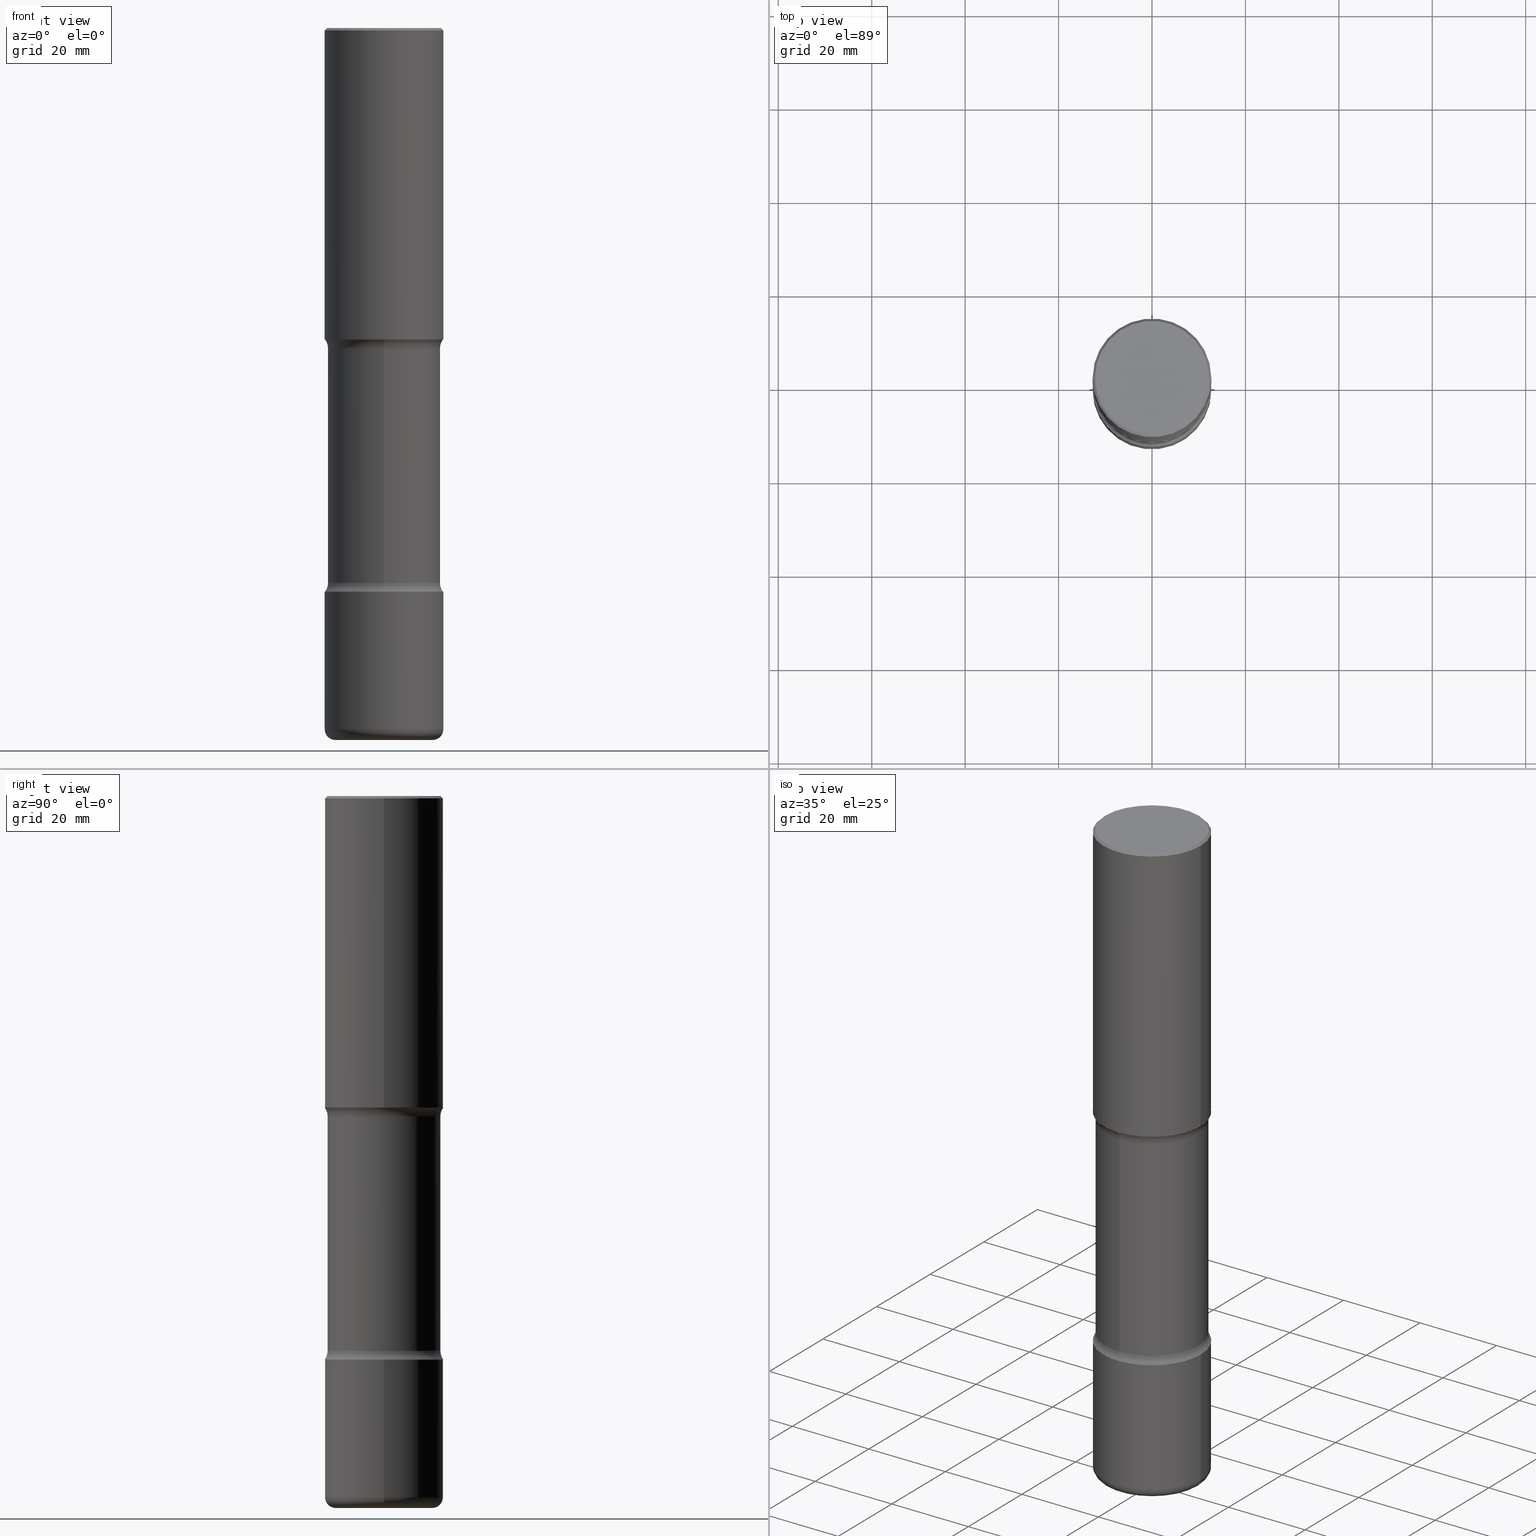
[diagram: canonical four-view strip — front | top / right | iso, engineering-drawing reading convention]
A machine part, canonical four-view strip (front | top / right | iso — engineering-drawing reading convention). The complete STEP part file that produces these views, byte-faithful:
ISO-10303-21;
HEADER;
FILE_DESCRIPTION (( 'STEP AP203' ),
    '1' );
FILE_NAME ('35140.STEP',
    '2024-03-01T23:17:48',
    ( '' ),
    ( '' ),
    'SwSTEP 2.0',
    'SolidWorks 2023',
    '' );
FILE_SCHEMA (( 'CONFIG_CONTROL_DESIGN' ));
ENDSEC;

DATA;
#1 = ORIENTED_EDGE ( 'NONE', *, *, #66, .T. ) ;
#2 = DIRECTION ( 'NONE',  ( 1.000000000000000000, -6.982962677686261977E-15, 0.000000000000000000 ) ) ;
#3 = ADVANCED_FACE ( 'NONE', ( #78 ), #238, .F. ) ;
#4 = CARTESIAN_POINT ( 'NONE',  ( 4.890937612370298557E-31, -6.982962677686327354E-17, -0.02000000000000010103 ) ) ;
#5 = VERTEX_POINT ( 'NONE', #531 ) ;
#6 = DIRECTION ( 'NONE',  ( -2.445468806185136597E-29, 3.491481338843145583E-15, 1.000000000000000000 ) ) ;
#7 = EDGE_CURVE ( 'NONE', #113, #234, #418, .T. ) ;
#8 = DIRECTION ( 'NONE',  ( 1.000000000000000000, -6.982962677686261977E-15, 0.000000000000000000 ) ) ;
#9 = ORIENTED_EDGE ( 'NONE', *, *, #491, .F. ) ;
#10 = DIRECTION ( 'NONE',  ( 1.000000000000000000, -6.982962677686267499E-15, 0.000000000000000000 ) ) ;
#11 = VECTOR ( 'NONE', #216, 39.37007874015748143 ) ;
#12 = FACE_OUTER_BOUND ( 'NONE', #178, .T. ) ;
#13 = SECURITY_CLASSIFICATION ( '', '', #221 ) ;
#14 = PLANE ( 'NONE',  #54 ) ;
#15 = ORIENTED_EDGE ( 'NONE', *, *, #521, .F. ) ;
#16 = DIRECTION ( 'NONE',  ( 6.982962677686265133E-15, 1.000000000000000000, -3.379601449890201672E-15 ) ) ;
#17 = DIRECTION ( 'NONE',  ( -2.445468806185136597E-29, 3.491481338843145583E-15, 1.000000000000000000 ) ) ;
#18 = CIRCLE ( 'NONE', #86, 0.5000000000000005551 ) ;
#19 = MECHANICAL_CONTEXT ( 'NONE', #414, 'mechanical' ) ;
#20 = ORIENTED_EDGE ( 'NONE', *, *, #386, .F. ) ;
#21 = EDGE_CURVE ( 'NONE', #320, #239, #315, .T. ) ;
#22 = CALENDAR_DATE ( 2024, 1, 3 ) ;
#23 = EDGE_CURVE ( 'NONE', #392, #320, #25, .T. ) ;
#24 = VECTOR ( 'NONE', #155, 39.37007874015748143 ) ;
#25 = LINE ( 'NONE', #501, #453 ) ;
#26 = TOROIDAL_SURFACE ( 'NONE', #402, 0.5999999999999999778, 0.1249999999999999584 ) ;
#27 = DIRECTION ( 'NONE',  ( 2.445468806185136597E-29, -3.491481338843145583E-15, -1.000000000000000000 ) ) ;
#28 = APPROVAL ( #454, 'UNSPECIFIED' ) ;
#29 = DIRECTION ( 'NONE',  ( 1.000000000000000000, -6.982962677686266711E-15, 4.876176775795935232E-29 ) ) ;
#30 = ORIENTED_EDGE ( 'NONE', *, *, #362, .F. ) ;
#31 = DIRECTION ( 'NONE',  ( 1.000000000000000000, -6.982962677686269077E-15, 4.883557194083113462E-29 ) ) ;
#32 = AXIS2_PLACEMENT_3D ( 'NONE', #268, #138, #312 ) ;
#33 = CARTESIAN_POINT ( 'NONE',  ( 1.445272064455415343E-28, -2.063465471256298629E-14, -5.909999999999999254 ) ) ;
#34 = DESIGN_CONTEXT ( 'detailed design', #71, 'design' ) ;
#35 = ORIENTED_EDGE ( 'NONE', *, *, #184, .T. ) ;
#36 = DIRECTION ( 'NONE',  ( 1.000000000000000000, -6.982962677686264344E-15, 0.000000000000000000 ) ) ;
#37 = FACE_OUTER_BOUND ( 'NONE', #248, .T. ) ;
#38 = PERSON_AND_ORGANIZATION_ROLE ( 'creator' ) ;
#39 = CARTESIAN_POINT ( 'NONE',  ( -3.131554243005659264E-46, 4.471029511141341874E-32, 1.280553747030123384E-17 ) ) ;
#40 = AXIS2_PLACEMENT_3D ( 'NONE', #352, #391, #202 ) ;
#41 = VERTEX_POINT ( 'NONE', #72 ) ;
#42 = EDGE_CURVE ( 'NONE', #82, #113, #189, .T. ) ;
#43 = DIRECTION ( 'NONE',  ( 6.982962677686265133E-15, 1.000000000000000000, -3.450755360418016739E-15 ) ) ;
#44 = DIRECTION ( 'NONE',  ( -1.000000000000000000, 6.982962677686266711E-15, 0.000000000000000000 ) ) ;
#45 = ORIENTED_EDGE ( 'NONE', *, *, #505, .F. ) ;
#46 = CARTESIAN_POINT ( 'NONE',  ( 4.102919532620488144E-30, -1.777045969450568052E-14, -2.625000000000000444 ) ) ;
#47 = CARTESIAN_POINT ( 'NONE',  ( 1.477046947322857785E-28, -2.080903817186768789E-14, -5.999999999999999112 ) ) ;
#48 = EDGE_CURVE ( 'NONE', #377, #5, #274, .T. ) ;
#49 = CALENDAR_DATE ( 2024, 1, 3 ) ;
#50 = DIRECTION ( 'NONE',  ( 2.438088387897960049E-29, -3.491481338843145188E-15, -1.000000000000000000 ) ) ;
#51 = VERTEX_POINT ( 'NONE', #74 ) ;
#52 = DIRECTION ( 'NONE',  ( 2.523594115079346016E-29, -3.379601449890201278E-15, -1.000000000000000000 ) ) ;
#53 = CARTESIAN_POINT ( 'NONE',  ( -0.5000000000000002220, 3.552713678800502507E-15, -2.459467545127454012E-29 ) ) ;
#54 = AXIS2_PLACEMENT_3D ( 'NONE', #210, #50, #343 ) ;
#55 = ORIENTED_EDGE ( 'NONE', *, *, #422, .T. ) ;
#56 = AXIS2_PLACEMENT_3D ( 'NONE', #508, #307, #57 ) ;
#57 = DIRECTION ( 'NONE',  ( 6.982962677686266711E-15, 1.000000000000000000, -3.278217592397114284E-15 ) ) ;
#58 = PERSON_AND_ORGANIZATION_ROLE ( 'design_supplier' ) ;
#59 = DIRECTION ( 'NONE',  ( 6.860497997771532351E-15, 1.000000000000000000, 0.000000000000000000 ) ) ;
#60 = ADVANCED_FACE ( 'NONE', ( #494 ), #498, .T. ) ;
#61 = CC_DESIGN_PERSON_AND_ORGANIZATION_ASSIGNMENT ( #84, #58, ( #104 ) ) ;
#62 = PERSON_AND_ORGANIZATION_ROLE ( 'design_owner' ) ;
#63 = PERSON_AND_ORGANIZATION ( #529, #183 ) ;
#64 = EDGE_CURVE ( 'NONE', #392, #207, #144, .T. ) ;
#65 = AXIS2_PLACEMENT_3D ( 'NONE', #390, #351, #2 ) ;
#66 = EDGE_CURVE ( 'NONE', #433, #51, #193, .T. ) ;
#67 = APPROVAL_STATUS ( 'not_yet_approved' ) ;
#68 = DIRECTION ( 'NONE',  ( 7.105427357601001859E-15, 1.000000000000000000, -3.491481338843145583E-15 ) ) ;
#69 = AXIS2_PLACEMENT_3D ( 'NONE', #120, #470, #83 ) ;
#70 = CARTESIAN_POINT ( 'NONE',  ( 0.4100000000000005307, -2.381190273091023638E-14, -5.999999999999998224 ) ) ;
#71 = APPLICATION_CONTEXT ( 'configuration controlled 3d designs of mechanical parts and assemblies' ) ;
#72 = CARTESIAN_POINT ( 'NONE',  ( 0.5000000000000002220, -2.007601769834807990E-14, -4.750000000000000888 ) ) ;
#73 = ORIENTED_EDGE ( 'NONE', *, *, #505, .T. ) ;
#74 = CARTESIAN_POINT ( 'NONE',  ( 0.5000000000000004441, -1.265661985330638997E-14, -2.624999999999999556 ) ) ;
#75 = VERTEX_POINT ( 'NONE', #280 ) ;
#76 = CLOSED_SHELL ( 'NONE', ( #500, #318, #88, #3, #231, #441 ) ) ;
#77 = TOROIDAL_SURFACE ( 'NONE', #365, 0.5999999999999998668, 0.1250000000000000278 ) ;
#78 = FACE_OUTER_BOUND ( 'NONE', #344, .T. ) ;
#79 = ORIENTED_EDGE ( 'NONE', *, *, #342, .T. ) ;
#80 = DIRECTION ( 'NONE',  ( 1.000000000000000000, -6.860497997771530774E-15, 4.842169013103094469E-29 ) ) ;
#81 = ADVANCED_FACE ( 'NONE', ( #112 ), #245, .T. ) ;
#82 = VERTEX_POINT ( 'NONE', #493 ) ;
#83 = DIRECTION ( 'NONE',  ( 1.000000000000000000, -6.982962677686257244E-15, 0.000000000000000000 ) ) ;
#84 = PERSON_AND_ORGANIZATION ( #529, #183 ) ;
#85 = PLANE ( 'NONE',  #40 ) ;
#86 = AXIS2_PLACEMENT_3D ( 'NONE', #380, #339, #335 ) ;
#87 = CIRCLE ( 'NONE', #217, 0.5000000000000002220 ) ;
#88 = ADVANCED_FACE ( 'NONE', ( #272 ), #545, .T. ) ;
#89 = ORIENTED_EDGE ( 'NONE', *, *, #226, .F. ) ;
#90 = CARTESIAN_POINT ( 'NONE',  ( -0.5000000000000000000, 3.421651712066270057E-15, -0.02000000000000010103 ) ) ;
#91 = FACE_OUTER_BOUND ( 'NONE', #328, .T. ) ;
#92 = VERTEX_POINT ( 'NONE', #416 ) ;
#93 = FACE_OUTER_BOUND ( 'NONE', #526, .T. ) ;
#94 = DIRECTION ( 'NONE',  ( -2.445468806185136877E-29, 3.491481338843145188E-15, 1.000000000000000000 ) ) ;
#95 = EDGE_LOOP ( 'NONE', ( #417, #175, #404, #291 ) ) ;
#96 = CARTESIAN_POINT ( 'NONE',  ( -0.5000000000000004441, 3.552713678800504085E-15, -2.459467545127455133E-29 ) ) ;
#97 = TOROIDAL_SURFACE ( 'NONE', #489, 0.4100000000000005307, 0.08999999999999962197 ) ;
#98 = AXIS2_PLACEMENT_3D ( 'NONE', #289, #125, #43 ) ;
#99 = APPROVAL_DATE_TIME ( #319, #554 ) ;
#100 = ORIENTED_EDGE ( 'NONE', *, *, #467, .F. ) ;
#101 = EDGE_CURVE ( 'NONE', #92, #464, #429, .T. ) ;
#102 = CIRCLE ( 'NONE', #444, 0.5000000000000000000 ) ;
#103 = AXIS2_PLACEMENT_3D ( 'NONE', #431, #255, #466 ) ;
#104 = PRODUCT_DEFINITION_FORMATION_WITH_SPECIFIED_SOURCE ( 'ANY', '', #106, .NOT_KNOWN. ) ;
#105 = DIRECTION ( 'NONE',  ( 1.000000000000000000, 0.000000000000000000, 0.000000000000000000 ) ) ;
#106 = PRODUCT ( '35140', '35140', '', ( #19 ) ) ;
#107 = CARTESIAN_POINT ( 'NONE',  ( 4.890937612370298557E-31, -6.982962677686327354E-17, -0.02000000000000010103 ) ) ;
#108 = APPROVAL ( #341, 'UNSPECIFIED' ) ;
#109 = AXIS2_PLACEMENT_3D ( 'NONE', #33, #110, #502 ) ;
#110 = DIRECTION ( 'NONE',  ( -2.445468806185136597E-29, 3.491481338843145583E-15, 1.000000000000000000 ) ) ;
#111 = AXIS2_PLACEMENT_3D ( 'NONE', #355, #6, #163 ) ;
#112 = FACE_OUTER_BOUND ( 'NONE', #373, .T. ) ;
#113 = VERTEX_POINT ( 'NONE', #369 ) ;
#114 = ADVANCED_FACE ( 'NONE', ( #150 ), #97, .T. ) ;
#115 = AXIS2_PLACEMENT_3D ( 'NONE', #528, #180, #357 ) ;
#116 = DIRECTION ( 'NONE',  ( -2.445468806185136597E-29, 3.491481338843145583E-15, 1.000000000000000000 ) ) ;
#117 = CARTESIAN_POINT ( 'NONE',  ( -4.116298798662853620E-15, -0.6000000000000096367, -2.699999999999999734 ) ) ;
#118 = DIRECTION ( 'NONE',  ( 1.000000000000000000, -6.982962677686264344E-15, 0.000000000000000000 ) ) ;
#119 = EDGE_LOOP ( 'NONE', ( #461, #192, #423, #288 ) ) ;
#120 = CARTESIAN_POINT ( 'NONE',  ( 0.4100000000000005307, -2.349766941041436258E-14, -5.909999999999999254 ) ) ;
#121 = DATE_AND_TIME ( #169, #137 ) ;
#122 = CARTESIAN_POINT ( 'NONE',  ( 4.890937612370298557E-31, -6.982962677686327354E-17, -0.02000000000000010103 ) ) ;
#123 = VERTEX_POINT ( 'NONE', #70 ) ;
#124 = DIRECTION ( 'NONE',  ( 6.982962677686265133E-15, 1.000000000000000000, -2.300503573612011422E-15 ) ) ;
#125 = DIRECTION ( 'NONE',  ( 2.523594115079346016E-29, -3.379601449890201278E-15, -1.000000000000000000 ) ) ;
#126 = CARTESIAN_POINT ( 'NONE',  ( -3.430248998885651396E-15, -0.5000000000000169864, -4.749999999999999112 ) ) ;
#127 = AXIS2_PLACEMENT_3D ( 'NONE', #511, #240, #124 ) ;
#128 =( GEOMETRIC_REPRESENTATION_CONTEXT ( 3 ) GLOBAL_UNCERTAINTY_ASSIGNED_CONTEXT ( ( #166 ) ) GLOBAL_UNIT_ASSIGNED_CONTEXT ( ( #154, #550, #151 ) ) REPRESENTATION_CONTEXT ( 'NONE', 'WORKASPACE' ) );
#129 = ORIENTED_EDGE ( 'NONE', *, *, #157, .T. ) ;
#130 = CARTESIAN_POINT ( 'NONE',  ( 0.000000000000000000, 0.000000000000000000, 0.000000000000000000 ) ) ;
#131 = DIRECTION ( 'NONE',  ( 1.000000000000000000, -6.982962677686267499E-15, 0.000000000000000000 ) ) ;
#132 = EDGE_LOOP ( 'NONE', ( #129, #79, #148, #287 ) ) ;
#133 = FACE_OUTER_BOUND ( 'NONE', #481, .T. ) ;
#134 = CC_DESIGN_PERSON_AND_ORGANIZATION_ASSIGNMENT ( #225, #407, ( #143 ) ) ;
#135 = DIRECTION ( 'NONE',  ( 2.523594115079346016E-29, -3.379601449890201278E-15, -1.000000000000000000 ) ) ;
#136 = ORIENTED_EDGE ( 'NONE', *, *, #499, .F. ) ;
#137 = LOCAL_TIME ( 18, 17, 48.00000000000000000, #436 ) ;
#138 = DIRECTION ( 'NONE',  ( -2.445468806185136597E-29, 3.491481338843145583E-15, 1.000000000000000000 ) ) ;
#139 = APPROVAL_DATE_TIME ( #223, #28 ) ;
#140 = EDGE_CURVE ( 'NONE', #5, #377, #18, .T. ) ;
#141 = PERSON_AND_ORGANIZATION ( #529, #183 ) ;
#142 = ADVANCED_FACE ( 'NONE', ( #507 ), #204, .T. ) ;
#143 = PRODUCT_DEFINITION ( 'UNKNOWN', '', #104, #34 ) ;
#144 = CIRCLE ( 'NONE', #214, 0.4799999999999998712 ) ;
#145 = MANIFOLD_SOLID_BREP ( 'Body-Move/Copy2[2]', #76 ) ;
#146 = MANIFOLD_SOLID_BREP ( 'Body-Move/Copy2[1]', #235 ) ;
#147 = CARTESIAN_POINT ( 'NONE',  ( 6.419355616235982445E-29, -9.165138514463255034E-15, -2.624999999999999556 ) ) ;
#148 = ORIENTED_EDGE ( 'NONE', *, *, #21, .F. ) ;
#149 = ORIENTED_EDGE ( 'NONE', *, *, #140, .T. ) ;
#150 = FACE_OUTER_BOUND ( 'NONE', #153, .T. ) ;
#151 =( NAMED_UNIT ( * ) SI_UNIT ( $, .STERADIAN. ) SOLID_ANGLE_UNIT ( ) );
#152 = TOROIDAL_SURFACE ( 'NONE', #379, 0.5999999999999998668, 0.1250000000000000278 ) ;
#153 = EDGE_LOOP ( 'NONE', ( #259, #472, #73, #254 ) ) ;
#154 =( CONVERSION_BASED_UNIT ( 'INCH', #541 ) LENGTH_UNIT ( ) NAMED_UNIT ( #415 ) );
#155 = DIRECTION ( 'NONE',  ( 2.523594115079346297E-29, -3.379601449890201278E-15, -1.000000000000000000 ) ) ;
#156 = ORIENTED_EDGE ( 'NONE', *, *, #21, .T. ) ;
#157 = EDGE_CURVE ( 'NONE', #51, #433, #409, .T. ) ;
#158 = DIRECTION ( 'NONE',  ( -1.000000000000000000, 6.982962677686266711E-15, 0.000000000000000000 ) ) ;
#159 = ORIENTED_EDGE ( 'NONE', *, *, #232, .T. ) ;
#160 = DIRECTION ( 'NONE',  ( 6.982962677686265133E-15, 1.000000000000000000, -3.379601449890201672E-15 ) ) ;
#161 = CIRCLE ( 'NONE', #270, 0.5000000000000002220 ) ;
#162 = ORIENTED_EDGE ( 'NONE', *, *, #368, .T. ) ;
#163 = DIRECTION ( 'NONE',  ( 1.000000000000000000, -6.982962677686266711E-15, 4.876176775795935232E-29 ) ) ;
#164 = ADVANCED_BREP_SHAPE_REPRESENTATION ( '35140', ( #146, #145, #527, #348 ), #128 ) ;
#165 = LINE ( 'NONE', #53, #11 ) ;
#166 = UNCERTAINTY_MEASURE_WITH_UNIT (LENGTH_MEASURE( 1.000000000000000082E-05 ), #154, 'distance_accuracy_value', 'NONE');
#167 = ORIENTED_EDGE ( 'NONE', *, *, #42, .F. ) ;
#168 = DIRECTION ( 'NONE',  ( 2.523594115079346297E-29, -3.379601449890201278E-15, -1.000000000000000000 ) ) ;
#169 = CALENDAR_DATE ( 2024, 1, 3 ) ;
#170 = CARTESIAN_POINT ( 'NONE',  ( 1.143256666891551449E-28, -1.632267525909170681E-14, -4.674999999999999822 ) ) ;
#171 = ORIENTED_EDGE ( 'NONE', *, *, #367, .F. ) ;
#172 = FACE_OUTER_BOUND ( 'NONE', #366, .T. ) ;
#173 = CARTESIAN_POINT ( 'NONE',  ( 1.161597682937940108E-28, -1.658453635950494339E-14, -4.750000000000000888 ) ) ;
#174 = CIRCLE ( 'NONE', #446, 0.4100000000000005307 ) ;
#175 = ORIENTED_EDGE ( 'NONE', *, *, #467, .T. ) ;
#176 = FACE_OUTER_BOUND ( 'NONE', #273, .T. ) ;
#177 = DIRECTION ( 'NONE',  ( -2.445468806185136597E-29, 3.491481338843145583E-15, 1.000000000000000000 ) ) ;
#178 = EDGE_LOOP ( 'NONE', ( #510, #1, #35, #413 ) ) ;
#179 = DIRECTION ( 'NONE',  ( -2.445468806185136597E-29, 3.491481338843145583E-15, 1.000000000000000000 ) ) ;
#180 = DIRECTION ( 'NONE',  ( 2.438088387897960049E-29, -3.491481338843145188E-15, -1.000000000000000000 ) ) ;
#181 = AXIS2_PLACEMENT_3D ( 'NONE', #455, #68, #229 ) ;
#182 = AXIS2_PLACEMENT_3D ( 'NONE', #46, #257, #450 ) ;
#183 = ORGANIZATION ( 'UNSPECIFIED', 'UNSPECIFIED', '' ) ;
#184 = EDGE_CURVE ( 'NONE', #51, #320, #296, .T. ) ;
#185 = CC_DESIGN_DATE_AND_TIME_ASSIGNMENT ( #363, #401, ( #143 ) ) ;
#186 = CIRCLE ( 'NONE', #228, 0.4799999999999998712 ) ;
#187 = CONICAL_SURFACE ( 'NONE', #534, 0.5000000000000000000, 0.7853981633974485010 ) ;
#188 = CC_DESIGN_APPROVAL ( #108, ( #13 ) ) ;
#189 = LINE ( 'NONE', #537, #24 ) ;
#190 = DIRECTION ( 'NONE',  ( 6.982962677686266711E-15, 1.000000000000000000, -3.278217592397112312E-15 ) ) ;
#191 = CARTESIAN_POINT ( 'NONE',  ( 1.142670727074844742E-28, -1.633106625076317916E-14, -4.674999999999999822 ) ) ;
#192 = ORIENTED_EDGE ( 'NONE', *, *, #326, .T. ) ;
#193 = CIRCLE ( 'NONE', #456, 0.5000000000000004441 ) ;
#194 = AXIS2_PLACEMENT_3D ( 'NONE', #212, #558, #10 ) ;
#195 = ORIENTED_EDGE ( 'NONE', *, *, #101, .T. ) ;
#196 = ADVANCED_FACE ( 'NONE', ( #172 ), #439, .F. ) ;
#197 = CC_DESIGN_PERSON_AND_ORGANIZATION_ASSIGNMENT ( #63, #62, ( #106 ) ) ;
#198 = ORIENTED_EDGE ( 'NONE', *, *, #157, .F. ) ;
#199 = CARTESIAN_POINT ( 'NONE',  ( 6.459692832343351385E-29, -9.631888214401318406E-15, -2.700000000000001954 ) ) ;
#200 = AXIS2_PLACEMENT_3D ( 'NONE', #395, #426, #388 ) ;
#201 = CIRCLE ( 'NONE', #103, 0.4749999999999999223 ) ;
#202 = DIRECTION ( 'NONE',  ( -1.000000000000000000, 6.982962677686265922E-15, -4.876176775795935793E-29 ) ) ;
#203 = ORIENTED_EDGE ( 'NONE', *, *, #326, .F. ) ;
#204 = CYLINDRICAL_SURFACE ( 'NONE', #127, 0.4749999999999999778 ) ;
#205 = DIRECTION ( 'NONE',  ( 1.000000000000000000, -6.982962677686266711E-15, 4.876176775795935793E-29 ) ) ;
#206 = FACE_OUTER_BOUND ( 'NONE', #557, .T. ) ;
#207 = VERTEX_POINT ( 'NONE', #260 ) ;
#208 = DIRECTION ( 'NONE',  ( 6.982962677686265133E-15, 1.000000000000000000, -3.450755360418016739E-15 ) ) ;
#209 = APPROVAL_DATE_TIME ( #332, #108 ) ;
#210 = CARTESIAN_POINT ( 'NONE',  ( 2.583948166493694733E-28, -4.957582704292470549E-15, -5.999999999999999112 ) ) ;
#211 = ORIENTED_EDGE ( 'NONE', *, *, #458, .T. ) ;
#212 = CARTESIAN_POINT ( 'NONE',  ( 1.161597682937940108E-28, -1.658453635950494339E-14, -4.750000000000000888 ) ) ;
#213 = CARTESIAN_POINT ( 'NONE',  ( -0.5000000000000004441, -1.064770391819553504E-15, -2.624999999999999556 ) ) ;
#214 = AXIS2_PLACEMENT_3D ( 'NONE', #411, #374, #539 ) ;
#215 = ADVANCED_FACE ( 'NONE', ( #206 ), #14, .T. ) ;
#216 = DIRECTION ( 'NONE',  ( -2.445468806185136877E-29, 3.491481338843145188E-15, 1.000000000000000000 ) ) ;
#217 = AXIS2_PLACEMENT_3D ( 'NONE', #173, #336, #241 ) ;
#218 = AXIS2_PLACEMENT_3D ( 'NONE', #117, #80, #292 ) ;
#219 = VERTEX_POINT ( 'NONE', #126 ) ;
#220 = DIRECTION ( 'NONE',  ( 2.523594115079346016E-29, -3.379601449890201278E-15, -1.000000000000000000 ) ) ;
#221 = SECURITY_CLASSIFICATION_LEVEL ( 'unclassified' ) ;
#222 = CARTESIAN_POINT ( 'NONE',  ( 1.445272064455415343E-28, -2.063465471256298629E-14, -5.909999999999999254 ) ) ;
#223 = DATE_AND_TIME ( #266, #447 ) ;
#224 = VECTOR ( 'NONE', #264, 39.37007874015748143 ) ;
#225 = PERSON_AND_ORGANIZATION ( #529, #183 ) ;
#226 = EDGE_CURVE ( 'NONE', #543, #113, #364, .T. ) ;
#227 = CLOSED_SHELL ( 'NONE', ( #544, #300, #396, #428, #397, #196, #553, #142 ) ) ;
#228 = AXIS2_PLACEMENT_3D ( 'NONE', #39, #177, #432 ) ;
#229 = DIRECTION ( 'NONE',  ( -1.000000000000000000, 7.105427357601001859E-15, 0.000000000000000000 ) ) ;
#230 = DIRECTION ( 'NONE',  ( 2.523594115079346016E-29, -3.379601449890201278E-15, -1.000000000000000000 ) ) ;
#231 = ADVANCED_FACE ( 'NONE', ( #91 ), #253, .F. ) ;
#232 = EDGE_CURVE ( 'NONE', #239, #320, #102, .T. ) ;
#233 = CARTESIAN_POINT ( 'NONE',  ( 0.000000000000000000, 0.000000000000000000, 0.000000000000000000 ) ) ;
#234 = VERTEX_POINT ( 'NONE', #520 ) ;
#235 = CLOSED_SHELL ( 'NONE', ( #486, #81, #215, #114, #60, #278 ) ) ;
#236 = CARTESIAN_POINT ( 'NONE',  ( 6.253339334835791142E-29, -9.402883278488267648E-15, -2.625000000000000888 ) ) ;
#237 = LOCAL_TIME ( 18, 17, 48.00000000000000000, #449 ) ;
#238 = PLANE ( 'NONE',  #115 ) ;
#239 = VERTEX_POINT ( 'NONE', #448 ) ;
#240 = DIRECTION ( 'NONE',  ( 2.523594115079346016E-29, -3.379601449890201278E-15, -1.000000000000000000 ) ) ;
#241 = DIRECTION ( 'NONE',  ( 6.982962677686266711E-15, 1.000000000000000000, -3.278217592397114284E-15 ) ) ;
#242 = CARTESIAN_POINT ( 'NONE',  ( 4.189777606611873622E-15, 0.5999999999999835465, -4.675000000000002487 ) ) ;
#243 = ORIENTED_EDGE ( 'NONE', *, *, #226, .T. ) ;
#244 = DIRECTION ( 'NONE',  ( -2.445468806185136597E-29, 3.491481338843145583E-15, 1.000000000000000000 ) ) ;
#245 = TOROIDAL_SURFACE ( 'NONE', #109, 0.4100000000000005307, 0.08999999999999962197 ) ;
#246 = AXIS2_PLACEMENT_3D ( 'NONE', #485, #135, #208 ) ;
#247 = DIRECTION ( 'NONE',  ( 2.523594115079346016E-29, -3.379601449890201278E-15, -1.000000000000000000 ) ) ;
#248 = EDGE_LOOP ( 'NONE', ( #495, #503, #162, #443 ) ) ;
#249 = DIRECTION ( 'NONE',  ( 2.523594115079346016E-29, -3.379601449890201278E-15, -1.000000000000000000 ) ) ;
#250 = CARTESIAN_POINT ( 'NONE',  ( 0.5000000000000002220, -3.491481338843134933E-15, 2.438088387897969017E-29 ) ) ;
#251 = DIRECTION ( 'NONE',  ( -0.7071067811865476838, 2.468850131082258638E-15, -0.7071067811865473507 ) ) ;
#252 = PERSON_AND_ORGANIZATION_ROLE ( 'classification_officer' ) ;
#253 = PLANE ( 'NONE',  #200 ) ;
#254 = ORIENTED_EDGE ( 'NONE', *, *, #405, .F. ) ;
#255 = DIRECTION ( 'NONE',  ( 2.523594115079346016E-29, -3.379601449890201278E-15, -1.000000000000000000 ) ) ;
#256 = EDGE_CURVE ( 'NONE', #207, #392, #186, .T. ) ;
#257 = DIRECTION ( 'NONE',  ( 2.523594115079345736E-29, -3.379601449890201278E-15, -1.000000000000000000 ) ) ;
#258 = FACE_OUTER_BOUND ( 'NONE', #438, .T. ) ;
#259 = ORIENTED_EDGE ( 'NONE', *, *, #101, .F. ) ;
#260 = CARTESIAN_POINT ( 'NONE',  ( -0.4799999999999998712, 3.386736898677838408E-15, 1.280553747027767124E-17 ) ) ;
#261 = CARTESIAN_POINT ( 'NONE',  ( 1.143256666891551449E-28, -1.632267525909170681E-14, -4.674999999999999822 ) ) ;
#262 = SHAPE_DEFINITION_REPRESENTATION ( #317, #164 ) ;
#263 = AXIS2_PLACEMENT_3D ( 'NONE', #191, #230, #327 ) ;
#264 = DIRECTION ( 'NONE',  ( -2.445468806185136877E-29, 3.491481338843145188E-15, 1.000000000000000000 ) ) ;
#265 = CIRCLE ( 'NONE', #194, 0.5000000000000002220 ) ;
#266 = CALENDAR_DATE ( 2024, 1, 3 ) ;
#267 = ORIENTED_EDGE ( 'NONE', *, *, #386, .T. ) ;
#268 = CARTESIAN_POINT ( 'NONE',  ( 1.445272064455415343E-28, -2.063465471256298629E-14, -5.909999999999999254 ) ) ;
#269 = AXIS2_PLACEMENT_3D ( 'NONE', #523, #284, #463 ) ;
#270 = AXIS2_PLACEMENT_3D ( 'NONE', #349, #290, #131 ) ;
#271 = APPLICATION_PROTOCOL_DEFINITION ( 'international standard', 'config_control_design', 1994, #71 ) ;
#272 = FACE_OUTER_BOUND ( 'NONE', #398, .T. ) ;
#273 = EDGE_LOOP ( 'NONE', ( #30, #9, #243, #451 ) ) ;
#274 = CIRCLE ( 'NONE', #329, 0.5000000000000005551 ) ;
#275 = CIRCLE ( 'NONE', #98, 0.4749999999999999778 ) ;
#276 = CC_DESIGN_SECURITY_CLASSIFICATION ( #13, ( #104 ) ) ;
#277 = ORIENTED_EDGE ( 'NONE', *, *, #140, .F. ) ;
#278 = ADVANCED_FACE ( 'NONE', ( #480 ), #85, .F. ) ;
#279 = PRODUCT_RELATED_PRODUCT_CATEGORY ( 'detail', '', ( #106 ) ) ;
#280 = CARTESIAN_POINT ( 'NONE',  ( 0.5000000000000002220, -2.412613605140612280E-14, -5.909999999999999254 ) ) ;
#281 = VERTEX_POINT ( 'NONE', #308 ) ;
#282 = AXIS2_PLACEMENT_3D ( 'NONE', #107, #27, #158 ) ;
#283 = CIRCLE ( 'NONE', #419, 0.1249999999999999584 ) ;
#284 = DIRECTION ( 'NONE',  ( -2.523594115079345736E-29, 3.379601449890201278E-15, 1.000000000000000000 ) ) ;
#285 = EDGE_CURVE ( 'NONE', #92, #123, #174, .T. ) ;
#286 = EDGE_CURVE ( 'NONE', #75, #41, #482, .T. ) ;
#287 = ORIENTED_EDGE ( 'NONE', *, *, #184, .F. ) ;
#288 = ORIENTED_EDGE ( 'NONE', *, *, #286, .F. ) ;
#289 = CARTESIAN_POINT ( 'NONE',  ( 6.442608893466743677E-29, -9.656353387230035032E-15, -2.700000000000001954 ) ) ;
#290 = DIRECTION ( 'NONE',  ( -2.445468806185136597E-29, 3.491481338843145583E-15, 1.000000000000000000 ) ) ;
#291 = ORIENTED_EDGE ( 'NONE', *, *, #452, .F. ) ;
#292 = DIRECTION ( 'NONE',  ( 6.860497997771532351E-15, 1.000000000000000000, 0.000000000000000000 ) ) ;
#293 = CARTESIAN_POINT ( 'NONE',  ( 4.189777606611823924E-15, 0.5999999999999903189, -2.700000000000004174 ) ) ;
#294 = ORIENTED_EDGE ( 'NONE', *, *, #23, .F. ) ;
#295 = PLANE ( 'NONE',  #182 ) ;
#296 = LINE ( 'NONE', #250, #347 ) ;
#297 = CYLINDRICAL_SURFACE ( 'NONE', #474, 0.5000000000000002220 ) ;
#298 = APPROVAL_ROLE ( '' ) ;
#299 = DIRECTION ( 'NONE',  ( -1.000000000000000000, 6.982962677686265922E-15, -4.883557194083112340E-29 ) ) ;
#300 = ADVANCED_FACE ( 'NONE', ( #258 ), #77, .F. ) ;
#301 = VERTEX_POINT ( 'NONE', #514 ) ;
#302 = EDGE_CURVE ( 'NONE', #41, #281, #161, .T. ) ;
#303 = CARTESIAN_POINT ( 'NONE',  ( 3.491481338843251684E-15, 0.4999999999999837352, -4.750000000000002665 ) ) ;
#304 = CARTESIAN_POINT ( 'NONE',  ( 0.5000000000000000000, -3.500078625662629079E-15, -0.02000000000000010103 ) ) ;
#305 = ORIENTED_EDGE ( 'NONE', *, *, #7, .F. ) ;
#306 = FACE_OUTER_BOUND ( 'NONE', #324, .T. ) ;
#307 = DIRECTION ( 'NONE',  ( 2.523594115079346016E-29, -3.379601449890201278E-15, -1.000000000000000000 ) ) ;
#308 = CARTESIAN_POINT ( 'NONE',  ( -0.5000000000000002220, -1.505688185723346233E-14, -4.750000000000000888 ) ) ;
#309 = AXIS2_PLACEMENT_3D ( 'NONE', #548, #325, #542 ) ;
#310 = CIRCLE ( 'NONE', #394, 0.5000000000000004441 ) ;
#311 = CC_DESIGN_APPROVAL ( #554, ( #143 ) ) ;
#312 = DIRECTION ( 'NONE',  ( 1.000000000000000000, -6.982962677686264344E-15, 0.000000000000000000 ) ) ;
#313 = CARTESIAN_POINT ( 'NONE',  ( 0.000000000000000000, 0.000000000000000000, 0.000000000000000000 ) ) ;
#314 = APPLICATION_PROTOCOL_DEFINITION ( 'international standard', 'config_control_design', 1994, #414 ) ;
#315 = CIRCLE ( 'NONE', #309, 0.5000000000000000000 ) ;
#316 = VECTOR ( 'NONE', #94, 39.37007874015748143 ) ;
#317 = PRODUCT_DEFINITION_SHAPE ( 'NONE', 'NONE',  #143 ) ;
#318 = ADVANCED_FACE ( 'NONE', ( #356 ), #187, .T. ) ;
#319 = DATE_AND_TIME ( #533, #382 ) ;
#320 = VERTEX_POINT ( 'NONE', #304 ) ;
#321 = CC_DESIGN_DATE_AND_TIME_ASSIGNMENT ( #121, #425, ( #13 ) ) ;
#322 = AXIS2_PLACEMENT_3D ( 'NONE', #559, #244, #205 ) ;
#323 = DIRECTION ( 'NONE',  ( 2.523594115079346016E-29, -3.379601449890201278E-15, -1.000000000000000000 ) ) ;
#324 = EDGE_LOOP ( 'NONE', ( #333, #277 ) ) ;
#325 = DIRECTION ( 'NONE',  ( -2.445468806185136597E-29, 3.491481338843145583E-15, 1.000000000000000000 ) ) ;
#326 = EDGE_CURVE ( 'NONE', #464, #281, #468, .T. ) ;
#327 = DIRECTION ( 'NONE',  ( 6.982962677686265133E-15, 1.000000000000000000, -3.450755360418017133E-15 ) ) ;
#328 = EDGE_LOOP ( 'NONE', ( #198, #465 ) ) ;
#329 = AXIS2_PLACEMENT_3D ( 'NONE', #236, #323, #190 ) ;
#330 = AXIS2_PLACEMENT_3D ( 'NONE', #199, #381, #340 ) ;
#331 = APPROVAL_PERSON_ORGANIZATION ( #141, #554, #360 ) ;
#332 = DATE_AND_TIME ( #49, #547 ) ;
#333 = ORIENTED_EDGE ( 'NONE', *, *, #48, .F. ) ;
#334 = CARTESIAN_POINT ( 'NONE',  ( 6.459692832343351385E-29, -9.631888214401318406E-15, -2.700000000000001954 ) ) ;
#335 = DIRECTION ( 'NONE',  ( 6.982962677686266711E-15, 1.000000000000000000, -3.278217592397112312E-15 ) ) ;
#336 = DIRECTION ( 'NONE',  ( 2.523594115079346016E-29, -3.379601449890201278E-15, -1.000000000000000000 ) ) ;
#337 = DIRECTION ( 'NONE',  ( 2.445468806185136597E-29, -3.491481338843145583E-15, -1.000000000000000000 ) ) ;
#338 = ORIENTED_EDGE ( 'NONE', *, *, #362, .T. ) ;
#339 = DIRECTION ( 'NONE',  ( 2.523594115079346016E-29, -3.379601449890201278E-15, -1.000000000000000000 ) ) ;
#340 = DIRECTION ( 'NONE',  ( 6.982962677686265133E-15, 1.000000000000000000, -3.379601449890201672E-15 ) ) ;
#341 = APPROVAL_STATUS ( 'not_yet_approved' ) ;
#342 = EDGE_CURVE ( 'NONE', #433, #239, #165, .T. ) ;
#343 = DIRECTION ( 'NONE',  ( -1.000000000000000000, 6.982962677686265922E-15, -4.876176775795935793E-29 ) ) ;
#344 = EDGE_LOOP ( 'NONE', ( #371, #549 ) ) ;
#345 = CYLINDRICAL_SURFACE ( 'NONE', #111, 0.5000000000000004441 ) ;
#346 = PERSON_AND_ORGANIZATION ( #529, #183 ) ;
#347 = VECTOR ( 'NONE', #434, 39.37007874015748143 ) ;
#348 = AXIS2_PLACEMENT_3D ( 'NONE', #313, #492, #105 ) ;
#349 = CARTESIAN_POINT ( 'NONE',  ( 1.161597682937940108E-28, -1.658453635950494339E-14, -4.750000000000000888 ) ) ;
#350 = ORIENTED_EDGE ( 'NONE', *, *, #452, .T. ) ;
#351 = DIRECTION ( 'NONE',  ( -2.445468806185136597E-29, 3.491481338843145583E-15, 1.000000000000000000 ) ) ;
#352 = CARTESIAN_POINT ( 'NONE',  ( 1.161597682937940108E-28, -1.658453635950494339E-14, -4.750000000000000888 ) ) ;
#353 = EDGE_LOOP ( 'NONE', ( #203, #384, #538, #20 ) ) ;
#354 = CC_DESIGN_PERSON_AND_ORGANIZATION_ASSIGNMENT ( #387, #38, ( #104 ) ) ;
#355 = CARTESIAN_POINT ( 'NONE',  ( 0.000000000000000000, 0.000000000000000000, 0.000000000000000000 ) ) ;
#356 = FACE_OUTER_BOUND ( 'NONE', #552, .T. ) ;
#357 = DIRECTION ( 'NONE',  ( -1.000000000000000000, 6.982962677686265922E-15, -4.876176775795935793E-29 ) ) ;
#358 = AXIS2_PLACEMENT_3D ( 'NONE', #233, #420, #29 ) ;
#359 = CIRCLE ( 'NONE', #246, 0.4749999999999999778 ) ;
#360 = APPROVAL_ROLE ( '' ) ;
#361 = DIRECTION ( 'NONE',  ( -6.982962677686265133E-15, -1.000000000000000000, 0.000000000000000000 ) ) ;
#362 = EDGE_CURVE ( 'NONE', #219, #234, #430, .T. ) ;
#363 = DATE_AND_TIME ( #22, #237 ) ;
#364 = CIRCLE ( 'NONE', #378, 0.1250000000000000278 ) ;
#365 = AXIS2_PLACEMENT_3D ( 'NONE', #170, #247, #442 ) ;
#366 = EDGE_LOOP ( 'NONE', ( #522, #478 ) ) ;
#367 = EDGE_CURVE ( 'NONE', #75, #464, #310, .T. ) ;
#368 = EDGE_CURVE ( 'NONE', #82, #377, #283, .T. ) ;
#369 = CARTESIAN_POINT ( 'NONE',  ( 3.316907271901089495E-15, 0.4749999999999836020, -4.675000000000001599 ) ) ;
#370 = DIRECTION ( 'NONE',  ( -2.445468806185136597E-29, 3.491481338843145583E-15, 1.000000000000000000 ) ) ;
#371 = ORIENTED_EDGE ( 'NONE', *, *, #256, .T. ) ;
#372 = VECTOR ( 'NONE', #251, 39.37007874015748143 ) ;
#373 = EDGE_LOOP ( 'NONE', ( #211, #195, #171, #45 ) ) ;
#374 = DIRECTION ( 'NONE',  ( -2.445468806185136597E-29, 3.491481338843145583E-15, 1.000000000000000000 ) ) ;
#375 = ORIENTED_EDGE ( 'NONE', *, *, #23, .T. ) ;
#376 = CARTESIAN_POINT ( 'NONE',  ( 6.419355616235982445E-29, -9.165138514463255034E-15, -2.624999999999999556 ) ) ;
#377 = VERTEX_POINT ( 'NONE', #473 ) ;
#378 = AXIS2_PLACEMENT_3D ( 'NONE', #242, #299, #477 ) ;
#379 = AXIS2_PLACEMENT_3D ( 'NONE', #261, #220, #16 ) ;
#380 = CARTESIAN_POINT ( 'NONE',  ( 6.253339334835791142E-29, -9.402883278488267648E-15, -2.625000000000000888 ) ) ;
#381 = DIRECTION ( 'NONE',  ( 2.523594115079346016E-29, -3.379601449890201278E-15, -1.000000000000000000 ) ) ;
#382 = LOCAL_TIME ( 18, 17, 48.00000000000000000, #487 ) ;
#383 = CARTESIAN_POINT ( 'NONE',  ( -4.116298798662803133E-15, -0.6000000000000161871, -4.674999999999998046 ) ) ;
#384 = ORIENTED_EDGE ( 'NONE', *, *, #405, .T. ) ;
#385 = FACE_OUTER_BOUND ( 'NONE', #119, .T. ) ;
#386 = EDGE_CURVE ( 'NONE', #281, #41, #265, .T. ) ;
#387 = PERSON_AND_ORGANIZATION ( #529, #183 ) ;
#388 = DIRECTION ( 'NONE',  ( 1.000000000000000000, -6.982962677686265922E-15, 4.876176775795935793E-29 ) ) ;
#389 = ORIENTED_EDGE ( 'NONE', *, *, #459, .T. ) ;
#390 = CARTESIAN_POINT ( 'NONE',  ( 1.467281283711081510E-28, -2.094888803305886640E-14, -5.999999999999998224 ) ) ;
#391 = DIRECTION ( 'NONE',  ( 2.438088387897960049E-29, -3.491481338843145188E-15, -1.000000000000000000 ) ) ;
#392 = VERTEX_POINT ( 'NONE', #555 ) ;
#393 = DIRECTION ( 'NONE',  ( 6.982962677686265133E-15, 1.000000000000000000, -2.300503573612011422E-15 ) ) ;
#394 = AXIS2_PLACEMENT_3D ( 'NONE', #222, #400, #118 ) ;
#395 = CARTESIAN_POINT ( 'NONE',  ( 6.419355616235982445E-29, -9.165138514463255034E-15, -2.624999999999999556 ) ) ;
#396 = ADVANCED_FACE ( 'NONE', ( #133 ), #26, .F. ) ;
#397 = ADVANCED_FACE ( 'NONE', ( #306 ), #295, .F. ) ;
#398 = EDGE_LOOP ( 'NONE', ( #294, #506, #484, #159 ) ) ;
#399 = FACE_OUTER_BOUND ( 'NONE', #132, .T. ) ;
#400 = DIRECTION ( 'NONE',  ( -2.445468806185136597E-29, 3.491481338843145583E-15, 1.000000000000000000 ) ) ;
#401 = DATE_TIME_ROLE ( 'creation_date' ) ;
#402 = AXIS2_PLACEMENT_3D ( 'NONE', #334, #249, #160 ) ;
#403 = CC_DESIGN_APPROVAL ( #28, ( #104 ) ) ;
#404 = ORIENTED_EDGE ( 'NONE', *, *, #42, .T. ) ;
#405 = EDGE_CURVE ( 'NONE', #464, #75, #530, .T. ) ;
#406 =( LENGTH_UNIT ( ) NAMED_UNIT ( * ) SI_UNIT ( $, .METRE. ) );
#407 = PERSON_AND_ORGANIZATION_ROLE ( 'creator' ) ;
#408 = COORDINATED_UNIVERSAL_TIME_OFFSET ( 5, 0, .BEHIND. ) ;
#409 = CIRCLE ( 'NONE', #516, 0.5000000000000004441 ) ;
#410 = CC_DESIGN_PERSON_AND_ORGANIZATION_ASSIGNMENT ( #513, #252, ( #13 ) ) ;
#411 = CARTESIAN_POINT ( 'NONE',  ( -3.131554243005659264E-46, 4.471029511141341874E-32, 1.280553747030123384E-17 ) ) ;
#412 = DIRECTION ( 'NONE',  ( 0.7071067811865476838, -7.319954787623257623E-15, -0.7071067811865473507 ) ) ;
#413 = ORIENTED_EDGE ( 'NONE', *, *, #232, .F. ) ;
#414 = APPLICATION_CONTEXT ( 'configuration controlled 3d designs of mechanical parts and assemblies' ) ;
#415 = DIMENSIONAL_EXPONENTS ( 1.000000000000000000, 0.000000000000000000, 0.000000000000000000, 0.000000000000000000, 0.000000000000000000, 0.000000000000000000, 0.000000000000000000 ) ;
#416 = CARTESIAN_POINT ( 'NONE',  ( -0.4100000000000005307, -1.755880192510246999E-14, -5.999999999999998224 ) ) ;
#417 = ORIENTED_EDGE ( 'NONE', *, *, #459, .F. ) ;
#418 = CIRCLE ( 'NONE', #263, 0.4749999999999999223 ) ;
#419 = AXIS2_PLACEMENT_3D ( 'NONE', #293, #471, #361 ) ;
#420 = DIRECTION ( 'NONE',  ( -2.445468806185136597E-29, 3.491481338843145583E-15, 1.000000000000000000 ) ) ;
#421 = ORIENTED_EDGE ( 'NONE', *, *, #458, .F. ) ;
#422 = EDGE_CURVE ( 'NONE', #82, #301, #359, .T. ) ;
#423 = ORIENTED_EDGE ( 'NONE', *, *, #302, .F. ) ;
#424 = CYLINDRICAL_SURFACE ( 'NONE', #322, 0.5000000000000002220 ) ;
#425 = DATE_TIME_ROLE ( 'classification_date' ) ;
#426 = DIRECTION ( 'NONE',  ( -2.438088387897960049E-29, 3.491481338843145188E-15, 1.000000000000000000 ) ) ;
#427 = EDGE_LOOP ( 'NONE', ( #469, #267 ) ) ;
#428 = ADVANCED_FACE ( 'NONE', ( #37 ), #497, .F. ) ;
#429 = CIRCLE ( 'NONE', #181, 0.08999999999999958034 ) ;
#430 = CIRCLE ( 'NONE', #504, 0.1250000000000000278 ) ;
#431 = CARTESIAN_POINT ( 'NONE',  ( 1.142670727074844742E-28, -1.633106625076317916E-14, -4.674999999999999822 ) ) ;
#432 = DIRECTION ( 'NONE',  ( 1.000000000000000000, -6.982962677686266711E-15, 4.876036955247130525E-29 ) ) ;
#433 = VERTEX_POINT ( 'NONE', #213 ) ;
#434 = DIRECTION ( 'NONE',  ( -2.445468806185136877E-29, 3.491481338843145188E-15, 1.000000000000000000 ) ) ;
#435 = DIRECTION ( 'NONE',  ( 1.000000000000000000, -6.982962677686266711E-15, 4.876176775795935793E-29 ) ) ;
#436 = COORDINATED_UNIVERSAL_TIME_OFFSET ( 5, 0, .BEHIND. ) ;
#437 = DIRECTION ( 'NONE',  ( 1.000000000000000000, -6.982962677686266711E-15, 0.000000000000000000 ) ) ;
#438 = EDGE_LOOP ( 'NONE', ( #136, #338, #350, #89 ) ) ;
#439 = PLANE ( 'NONE',  #269 ) ;
#440 = CYLINDRICAL_SURFACE ( 'NONE', #490, 0.4749999999999999778 ) ;
#441 = ADVANCED_FACE ( 'NONE', ( #12 ), #424, .T. ) ;
#442 = DIRECTION ( 'NONE',  ( 6.982962677686265133E-15, 1.000000000000000000, -3.379601449890201672E-15 ) ) ;
#443 = ORIENTED_EDGE ( 'NONE', *, *, #48, .T. ) ;
#444 = AXIS2_PLACEMENT_3D ( 'NONE', #4, #179, #437 ) ;
#445 = CARTESIAN_POINT ( 'NONE',  ( -3.258736548941329344E-15, -0.4750000000000207945, -5.999999999999998224 ) ) ;
#446 = AXIS2_PLACEMENT_3D ( 'NONE', #525, #17, #8 ) ;
#447 = LOCAL_TIME ( 18, 17, 48.00000000000000000, #408 ) ;
#448 = CARTESIAN_POINT ( 'NONE',  ( -0.5000000000000000000, 3.421651712066270057E-15, -0.02000000000000010103 ) ) ;
#449 = COORDINATED_UNIVERSAL_TIME_OFFSET ( 5, 0, .BEHIND. ) ;
#450 = DIRECTION ( 'NONE',  ( 6.982962677686265922E-15, 1.000000000000000000, -3.379601449890201278E-15 ) ) ;
#451 = ORIENTED_EDGE ( 'NONE', *, *, #7, .T. ) ;
#452 = EDGE_CURVE ( 'NONE', #234, #113, #201, .T. ) ;
#453 = VECTOR ( 'NONE', #412, 39.37007874015748143 ) ;
#454 = APPROVAL_STATUS ( 'not_yet_approved' ) ;
#455 = CARTESIAN_POINT ( 'NONE',  ( -0.4100000000000005307, -1.772142949594656820E-14, -5.909999999999999254 ) ) ;
#456 = AXIS2_PLACEMENT_3D ( 'NONE', #147, #460, #551 ) ;
#457 = CARTESIAN_POINT ( 'NONE',  ( 1.445272064455415343E-28, -2.063465471256298629E-14, -5.909999999999999254 ) ) ;
#458 = EDGE_CURVE ( 'NONE', #123, #92, #546, .T. ) ;
#459 = EDGE_CURVE ( 'NONE', #301, #234, #479, .T. ) ;
#460 = DIRECTION ( 'NONE',  ( -2.445468806185136597E-29, 3.491481338843145583E-15, 1.000000000000000000 ) ) ;
#461 = ORIENTED_EDGE ( 'NONE', *, *, #367, .T. ) ;
#462 = CIRCLE ( 'NONE', #218, 0.1249999999999999584 ) ;
#463 = DIRECTION ( 'NONE',  ( -6.982962677686265922E-15, -1.000000000000000000, 3.379601449890201278E-15 ) ) ;
#464 = VERTEX_POINT ( 'NONE', #475 ) ;
#465 = ORIENTED_EDGE ( 'NONE', *, *, #66, .F. ) ;
#466 = DIRECTION ( 'NONE',  ( 6.982962677686265133E-15, 1.000000000000000000, -3.450755360418017133E-15 ) ) ;
#467 = EDGE_CURVE ( 'NONE', #301, #82, #275, .T. ) ;
#468 = LINE ( 'NONE', #96, #316 ) ;
#469 = ORIENTED_EDGE ( 'NONE', *, *, #302, .T. ) ;
#470 = DIRECTION ( 'NONE',  ( -6.982962677686266711E-15, -1.000000000000000000, 3.491481338843145583E-15 ) ) ;
#471 = DIRECTION ( 'NONE',  ( -1.000000000000000000, 6.982962677686265922E-15, -4.883557194083112340E-29 ) ) ;
#472 = ORIENTED_EDGE ( 'NONE', *, *, #285, .T. ) ;
#473 = CARTESIAN_POINT ( 'NONE',  ( 3.491481338843199225E-15, 0.4999999999999911182, -2.625000000000002665 ) ) ;
#474 = AXIS2_PLACEMENT_3D ( 'NONE', #130, #512, #435 ) ;
#475 = CARTESIAN_POINT ( 'NONE',  ( -0.5000000000000002220, -1.708194103376247905E-14, -5.909999999999999254 ) ) ;
#476 = APPROVAL_PERSON_ORGANIZATION ( #346, #108, #298 ) ;
#477 = DIRECTION ( 'NONE',  ( -6.982962677686265133E-15, -1.000000000000000000, 0.000000000000000000 ) ) ;
#478 = ORIENTED_EDGE ( 'NONE', *, *, #499, .T. ) ;
#479 = LINE ( 'NONE', #445, #517 ) ;
#480 = FACE_OUTER_BOUND ( 'NONE', #427, .T. ) ;
#481 = EDGE_LOOP ( 'NONE', ( #100, #483, #149, #515 ) ) ;
#482 = LINE ( 'NONE', #560, #224 ) ;
#483 = ORIENTED_EDGE ( 'NONE', *, *, #496, .T. ) ;
#484 = ORIENTED_EDGE ( 'NONE', *, *, #521, .T. ) ;
#485 = CARTESIAN_POINT ( 'NONE',  ( 6.442608893466743677E-29, -9.656353387230035032E-15, -2.700000000000001954 ) ) ;
#486 = ADVANCED_FACE ( 'NONE', ( #385 ), #345, .T. ) ;
#487 = COORDINATED_UNIVERSAL_TIME_OFFSET ( 5, 0, .BEHIND. ) ;
#488 = ORIENTED_EDGE ( 'NONE', *, *, #64, .F. ) ;
#489 = AXIS2_PLACEMENT_3D ( 'NONE', #457, #370, #31 ) ;
#490 = AXIS2_PLACEMENT_3D ( 'NONE', #47, #52, #393 ) ;
#491 = EDGE_CURVE ( 'NONE', #543, #219, #536, .T. ) ;
#492 = DIRECTION ( 'NONE',  ( 0.000000000000000000, 0.000000000000000000, 1.000000000000000000 ) ) ;
#493 = CARTESIAN_POINT ( 'NONE',  ( 3.316907271901040585E-15, 0.4749999999999903744, -2.700000000000003286 ) ) ;
#494 = FACE_OUTER_BOUND ( 'NONE', #353, .T. ) ;
#495 = ORIENTED_EDGE ( 'NONE', *, *, #496, .F. ) ;
#496 = EDGE_CURVE ( 'NONE', #301, #5, #462, .T. ) ;
#497 = TOROIDAL_SURFACE ( 'NONE', #330, 0.5999999999999999778, 0.1249999999999999584 ) ;
#498 = CYLINDRICAL_SURFACE ( 'NONE', #358, 0.5000000000000004441 ) ;
#499 = EDGE_CURVE ( 'NONE', #219, #543, #87, .T. ) ;
#500 = ADVANCED_FACE ( 'NONE', ( #399 ), #297, .T. ) ;
#501 = CARTESIAN_POINT ( 'NONE',  ( 0.5000000000000000000, -3.500078625662629079E-15, -0.02000000000000010103 ) ) ;
#502 = DIRECTION ( 'NONE',  ( 1.000000000000000000, -6.982962677686269077E-15, 4.883557194083113462E-29 ) ) ;
#503 = ORIENTED_EDGE ( 'NONE', *, *, #422, .F. ) ;
#504 = AXIS2_PLACEMENT_3D ( 'NONE', #383, #509, #59 ) ;
#505 = EDGE_CURVE ( 'NONE', #123, #75, #556, .T. ) ;
#506 = ORIENTED_EDGE ( 'NONE', *, *, #256, .F. ) ;
#507 = FACE_OUTER_BOUND ( 'NONE', #95, .T. ) ;
#508 = CARTESIAN_POINT ( 'NONE',  ( 1.161597682937940108E-28, -1.658453635950494339E-14, -4.750000000000000888 ) ) ;
#509 = DIRECTION ( 'NONE',  ( 1.000000000000000000, -6.860497997771530774E-15, 4.842169013103094469E-29 ) ) ;
#510 = ORIENTED_EDGE ( 'NONE', *, *, #342, .F. ) ;
#511 = CARTESIAN_POINT ( 'NONE',  ( 1.477046947322857785E-28, -2.080903817186768789E-14, -5.999999999999999112 ) ) ;
#512 = DIRECTION ( 'NONE',  ( -2.445468806185136597E-29, 3.491481338843145583E-15, 1.000000000000000000 ) ) ;
#513 = PERSON_AND_ORGANIZATION ( #529, #183 ) ;
#514 = CARTESIAN_POINT ( 'NONE',  ( -3.344492773913559396E-15, -0.4750000000000096367, -2.700000000000000178 ) ) ;
#515 = ORIENTED_EDGE ( 'NONE', *, *, #368, .F. ) ;
#516 = AXIS2_PLACEMENT_3D ( 'NONE', #376, #116, #36 ) ;
#517 = VECTOR ( 'NONE', #168, 39.37007874015748143 ) ;
#518 = APPROVAL_PERSON_ORGANIZATION ( #535, #28, #532 ) ;
#519 = COORDINATED_UNIVERSAL_TIME_OFFSET ( 5, 0, .BEHIND. ) ;
#520 = CARTESIAN_POINT ( 'NONE',  ( -3.344492773913506542E-15, -0.4750000000000162426, -4.674999999999998934 ) ) ;
#521 = EDGE_CURVE ( 'NONE', #207, #239, #524, .T. ) ;
#522 = ORIENTED_EDGE ( 'NONE', *, *, #491, .T. ) ;
#523 = CARTESIAN_POINT ( 'NONE',  ( 1.161597682937940108E-28, -1.658453635950494339E-14, -4.750000000000000888 ) ) ;
#524 = LINE ( 'NONE', #90, #372 ) ;
#525 = CARTESIAN_POINT ( 'NONE',  ( 1.467281283711081510E-28, -2.094888803305886640E-14, -5.999999999999998224 ) ) ;
#526 = EDGE_LOOP ( 'NONE', ( #55, #389, #305, #167 ) ) ;
#527 = MANIFOLD_SOLID_BREP ( 'Body-Move/Copy2[4]', #227 ) ;
#528 = CARTESIAN_POINT ( 'NONE',  ( 3.351822085289406759E-15, 0.4799999999999998712, -1.669508273909558853E-15 ) ) ;
#529 = PERSON ( 'UNSPECIFIED', 'UNSPECIFIED', 'UNSPECIFIED', ('UNSPECIFIED'), ('UNSPECIFIED'), ('UNSPECIFIED') ) ;
#530 = CIRCLE ( 'NONE', #32, 0.5000000000000004441 ) ;
#531 = CARTESIAN_POINT ( 'NONE',  ( -3.430248998885706617E-15, -0.5000000000000099920, -2.624999999999999556 ) ) ;
#532 = APPROVAL_ROLE ( '' ) ;
#533 = CALENDAR_DATE ( 2024, 1, 3 ) ;
#534 = AXIS2_PLACEMENT_3D ( 'NONE', #122, #337, #44 ) ;
#535 = PERSON_AND_ORGANIZATION ( #529, #183 ) ;
#536 = CIRCLE ( 'NONE', #56, 0.5000000000000002220 ) ;
#537 = CARTESIAN_POINT ( 'NONE',  ( 3.316907271901123416E-15, 0.4749999999999791611, -6.000000000000000888 ) ) ;
#538 = ORIENTED_EDGE ( 'NONE', *, *, #286, .T. ) ;
#539 = DIRECTION ( 'NONE',  ( 1.000000000000000000, -6.982962677686266711E-15, 4.876036955247130525E-29 ) ) ;
#540 = ORIENTED_EDGE ( 'NONE', *, *, #285, .F. ) ;
#541 = LENGTH_MEASURE_WITH_UNIT ( LENGTH_MEASURE( 0.02539999999999999897 ), #406 );
#542 = DIRECTION ( 'NONE',  ( 1.000000000000000000, -6.982962677686266711E-15, 0.000000000000000000 ) ) ;
#543 = VERTEX_POINT ( 'NONE', #303 ) ;
#544 = ADVANCED_FACE ( 'NONE', ( #93 ), #440, .T. ) ;
#545 = CONICAL_SURFACE ( 'NONE', #282, 0.5000000000000000000, 0.7853981633974485010 ) ;
#546 = CIRCLE ( 'NONE', #65, 0.4100000000000005307 ) ;
#547 = LOCAL_TIME ( 18, 17, 48.00000000000000000, #519 ) ;
#548 = CARTESIAN_POINT ( 'NONE',  ( 4.890937612370298557E-31, -6.982962677686327354E-17, -0.02000000000000010103 ) ) ;
#549 = ORIENTED_EDGE ( 'NONE', *, *, #64, .T. ) ;
#550 =( NAMED_UNIT ( * ) PLANE_ANGLE_UNIT ( ) SI_UNIT ( $, .RADIAN. ) );
#551 = DIRECTION ( 'NONE',  ( 1.000000000000000000, -6.982962677686264344E-15, 0.000000000000000000 ) ) ;
#552 = EDGE_LOOP ( 'NONE', ( #488, #375, #156, #15 ) ) ;
#553 = ADVANCED_FACE ( 'NONE', ( #176 ), #152, .F. ) ;
#554 = APPROVAL ( #67, 'UNSPECIFIED' ) ;
#555 = CARTESIAN_POINT ( 'NONE',  ( 0.4799999999999998712, -3.396558832296481704E-15, 1.280553747032483033E-17 ) ) ;
#556 = CIRCLE ( 'NONE', #69, 0.08999999999999958034 ) ;
#557 = EDGE_LOOP ( 'NONE', ( #421, #540 ) ) ;
#558 = DIRECTION ( 'NONE',  ( -2.445468806185136597E-29, 3.491481338843145583E-15, 1.000000000000000000 ) ) ;
#559 = CARTESIAN_POINT ( 'NONE',  ( 0.000000000000000000, 0.000000000000000000, 0.000000000000000000 ) ) ;
#560 = CARTESIAN_POINT ( 'NONE',  ( 0.5000000000000004441, -3.491481338843136511E-15, 2.438088387897969858E-29 ) ) ;
ENDSEC;
END-ISO-10303-21;
